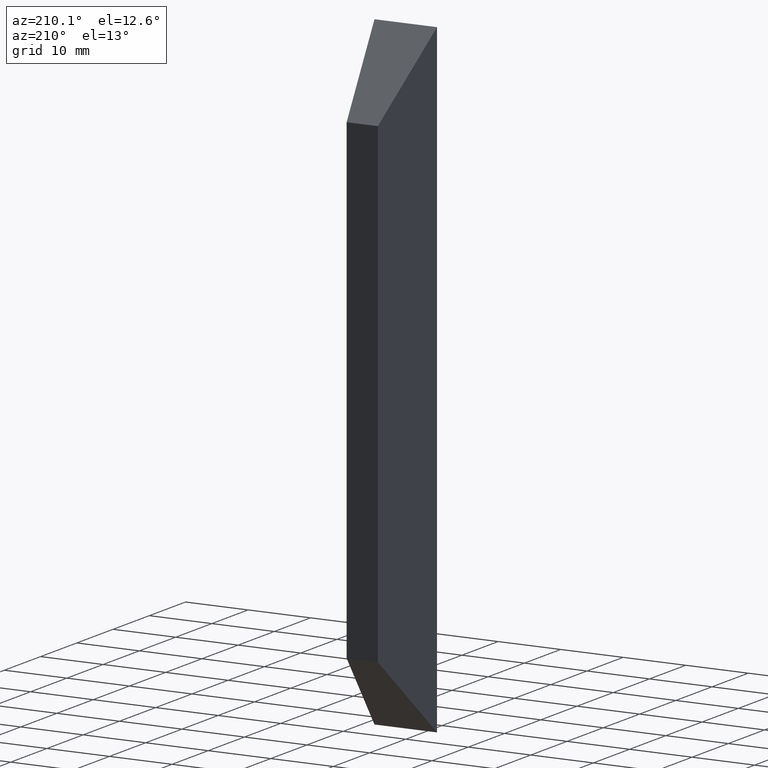
[diagram: clean part render]
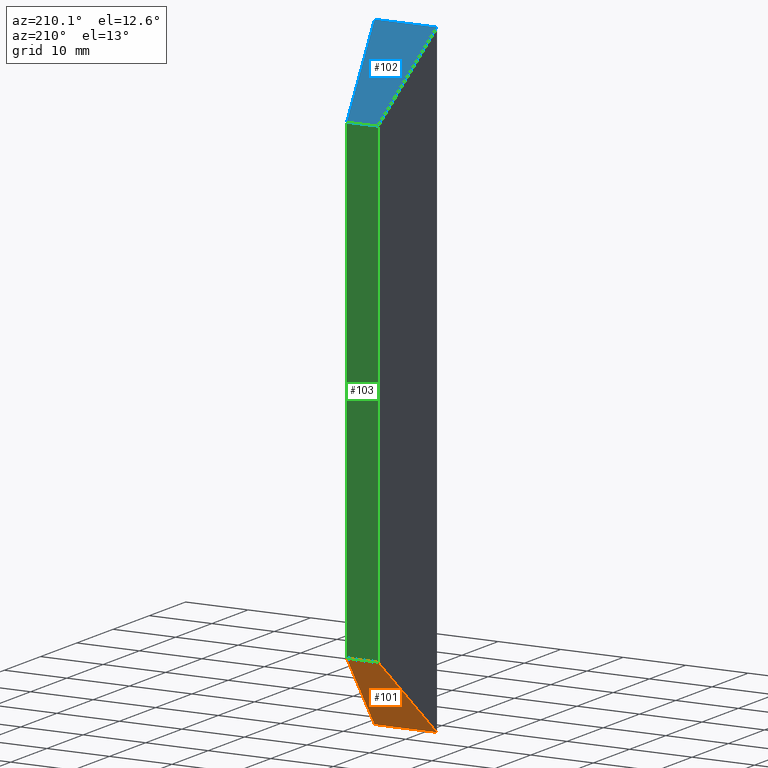
[diagram: same view with three faces highlighted in distinct colors, each labeled with its STEP entity id]
A machine part, auxiliary view with three faces highlighted in distinct colors.
Their STEP definitions:

[orange] entity #101 — the highlighted planar face has unit normal (0, -0.7071, 0.7071).
#15=FACE_OUTER_BOUND('',#21,.T.);
#21=EDGE_LOOP('',(#71,#72,#73,#74));
#27=LINE('',#166,#39);
#28=LINE('',#168,#40);
#29=LINE('',#170,#41);
#30=LINE('',#171,#42);
#39=VECTOR('',#140,10.);
#40=VECTOR('',#141,10.);
#41=VECTOR('',#142,10.);
#42=VECTOR('',#143,10.);
#51=VERTEX_POINT('',#164);
#52=VERTEX_POINT('',#165);
#53=VERTEX_POINT('',#167);
#54=VERTEX_POINT('',#169);
#59=EDGE_CURVE('',#51,#52,#27,.T.);
#60=EDGE_CURVE('',#51,#53,#28,.T.);
#61=EDGE_CURVE('',#54,#53,#29,.T.);
#62=EDGE_CURVE('',#52,#54,#30,.T.);
#71=ORIENTED_EDGE('',*,*,#59,.F.);
#72=ORIENTED_EDGE('',*,*,#60,.T.);
#73=ORIENTED_EDGE('',*,*,#61,.F.);
#74=ORIENTED_EDGE('',*,*,#62,.F.);
#95=PLANE('',#130);
#101=ADVANCED_FACE('',(#15),#95,.F.);
#130=AXIS2_PLACEMENT_3D('',#163,#138,#139);
#138=DIRECTION('center_axis',(0.,-0.707106781186546,0.707106781186549));
#139=DIRECTION('ref_axis',(0.,-0.707106781186549,-0.707106781186546));
#140=DIRECTION('',(-0.145741009332272,0.699556844794908,0.699556844794906));
#141=DIRECTION('',(-1.,0.,0.));
#142=DIRECTION('',(-0.145741009332273,-0.699556844794908,-0.699556844794906));
#143=DIRECTION('',(-1.,0.,0.));
#163=CARTESIAN_POINT('Origin',(0.,12.,-38.));
#164=CARTESIAN_POINT('',(5.,0.,-50.));
#165=CARTESIAN_POINT('',(2.50000000000001,12.,-38.));
#166=CARTESIAN_POINT('',(1.17459643160579,18.3619371282923,-31.6380628717078));
#167=CARTESIAN_POINT('',(-5.,0.,-50.));
#168=CARTESIAN_POINT('',(-5.,0.,-50.));
#169=CARTESIAN_POINT('',(-2.49999999999999,12.,-38.));
#170=CARTESIAN_POINT('',(-0.536321155480012,21.4256584536959,-28.5743415463042));
#171=CARTESIAN_POINT('',(1.25000000000001,12.,-38.));

[blue] entity #102 — the highlighted planar face has unit normal (0, -0.7071, -0.7071).
#16=FACE_OUTER_BOUND('',#22,.T.);
#22=EDGE_LOOP('',(#75,#76,#77,#78));
#31=LINE('',#175,#43);
#32=LINE('',#177,#44);
#33=LINE('',#179,#45);
#34=LINE('',#180,#46);
#43=VECTOR('',#146,10.);
#44=VECTOR('',#147,10.);
#45=VECTOR('',#148,10.);
#46=VECTOR('',#149,10.);
#55=VERTEX_POINT('',#173);
#56=VERTEX_POINT('',#174);
#57=VERTEX_POINT('',#176);
#58=VERTEX_POINT('',#178);
#63=EDGE_CURVE('',#55,#56,#31,.T.);
#64=EDGE_CURVE('',#57,#55,#32,.T.);
#65=EDGE_CURVE('',#58,#57,#33,.T.);
#66=EDGE_CURVE('',#58,#56,#34,.T.);
#75=ORIENTED_EDGE('',*,*,#63,.F.);
#76=ORIENTED_EDGE('',*,*,#64,.F.);
#77=ORIENTED_EDGE('',*,*,#65,.F.);
#78=ORIENTED_EDGE('',*,*,#66,.T.);
#96=PLANE('',#131);
#102=ADVANCED_FACE('',(#16),#96,.F.);
#131=AXIS2_PLACEMENT_3D('',#172,#144,#145);
#144=DIRECTION('center_axis',(0.,-0.707106781186546,-0.707106781186549));
#145=DIRECTION('ref_axis',(0.,0.707106781186549,-0.707106781186546));
#146=DIRECTION('',(0.145741009332272,-0.699556844794908,0.699556844794906));
#147=DIRECTION('',(1.,0.,0.));
#148=DIRECTION('',(0.145741009332273,0.699556844794908,-0.699556844794906));
#149=DIRECTION('',(1.,0.,0.));
#172=CARTESIAN_POINT('Origin',(0.,0.,50.));
#173=CARTESIAN_POINT('',(2.50000000000001,12.,38.));
#174=CARTESIAN_POINT('',(5.,0.,50.));
#175=CARTESIAN_POINT('',(2.3980458793543,12.4893797790994,37.5106202209006));
#176=CARTESIAN_POINT('',(-2.49999999999999,12.,38.));
#177=CARTESIAN_POINT('',(1.25000000000001,12.,38.));
#178=CARTESIAN_POINT('',(-5.,0.,50.));
#179=CARTESIAN_POINT('',(-1.75977060322853,15.553101104503,34.4468988954971));
#180=CARTESIAN_POINT('',(-5.,0.,50.));

[green] entity #103 — the highlighted planar face has unit normal (0, 1, 0).
#17=FACE_OUTER_BOUND('',#23,.T.);
#23=EDGE_LOOP('',(#79,#80,#81,#82));
#30=LINE('',#171,#42);
#32=LINE('',#177,#44);
#35=LINE('',#182,#47);
#36=LINE('',#183,#48);
#42=VECTOR('',#143,10.);
#44=VECTOR('',#147,10.);
#47=VECTOR('',#152,10.);
#48=VECTOR('',#153,10.);
#52=VERTEX_POINT('',#165);
#54=VERTEX_POINT('',#169);
#55=VERTEX_POINT('',#173);
#57=VERTEX_POINT('',#176);
#62=EDGE_CURVE('',#52,#54,#30,.T.);
#64=EDGE_CURVE('',#57,#55,#32,.T.);
#67=EDGE_CURVE('',#54,#57,#35,.T.);
#68=EDGE_CURVE('',#52,#55,#36,.T.);
#79=ORIENTED_EDGE('',*,*,#62,.T.);
#80=ORIENTED_EDGE('',*,*,#67,.T.);
#81=ORIENTED_EDGE('',*,*,#64,.T.);
#82=ORIENTED_EDGE('',*,*,#68,.F.);
#97=PLANE('',#132);
#103=ADVANCED_FACE('',(#17),#97,.T.);
#132=AXIS2_PLACEMENT_3D('',#181,#150,#151);
#143=DIRECTION('',(-1.,0.,0.));
#147=DIRECTION('',(1.,0.,0.));
#150=DIRECTION('center_axis',(0.,1.,0.));
#151=DIRECTION('ref_axis',(-1.,0.,0.));
#152=DIRECTION('',(0.,0.,1.));
#153=DIRECTION('',(0.,0.,1.));
#165=CARTESIAN_POINT('',(2.50000000000001,12.,-38.));
#169=CARTESIAN_POINT('',(-2.49999999999999,12.,-38.));
#171=CARTESIAN_POINT('',(1.25000000000001,12.,-38.));
#173=CARTESIAN_POINT('',(2.50000000000001,12.,38.));
#176=CARTESIAN_POINT('',(-2.49999999999999,12.,38.));
#177=CARTESIAN_POINT('',(1.25000000000001,12.,38.));
#181=CARTESIAN_POINT('Origin',(2.50000000000001,12.,0.));
#182=CARTESIAN_POINT('',(-2.49999999999999,12.,0.));
#183=CARTESIAN_POINT('',(2.50000000000001,12.,0.));